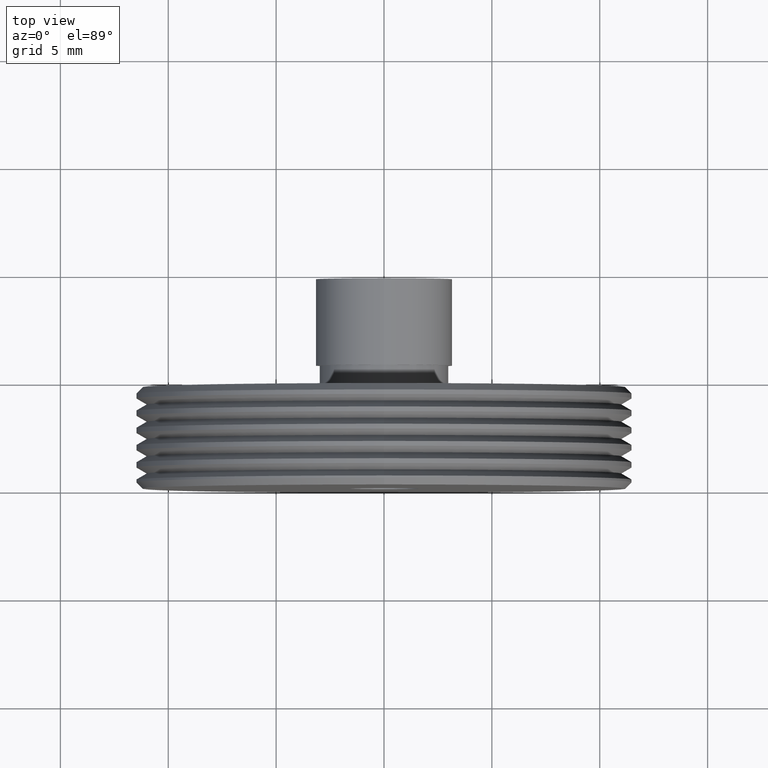
[diagram: clean part render]
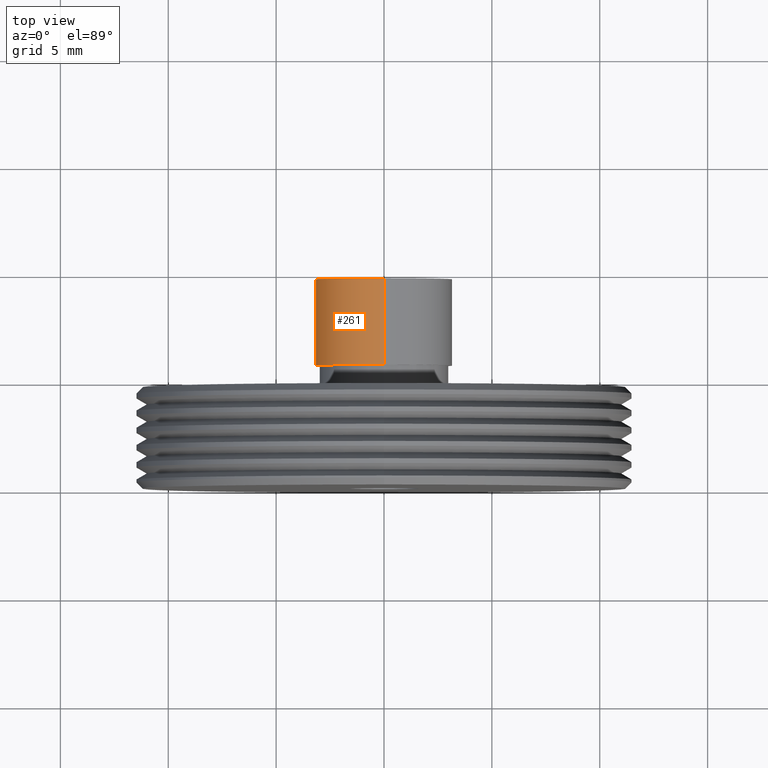
[diagram: same view with one face highlighted and labeled with its STEP entity id]
A machine part, top view. The second image highlights one B-rep face of the part: STEP entity #261.
In plain terms, the highlighted cylindrical surface (partial cylindrical patch) has radius 3.175 mm, axis along (-0, 1, -0).
Its self-contained STEP definition (entity closure, byte-faithful):
#20 = CARTESIAN_POINT ( 'NONE',  ( 0.0000000000000000000, 5.699999999999996600, 0.0000000000000000000 ) ) ;
#29 = CARTESIAN_POINT ( 'NONE',  ( 0.0000000000000000000, 41.06170623995065900, 3.175000000000004300 ) ) ;
#97 = DIRECTION ( 'NONE',  ( 0.0000000000000000000, 0.0000000000000000000, 1.000000000000000000 ) ) ;
#151 = LINE ( 'NONE', #29, #1055 ) ;
#249 = ORIENTED_EDGE ( 'NONE', *, *, #1036, .T. ) ;
#261 = ADVANCED_FACE ( 'NONE', ( #485 ), #560, .T. ) ;
#343 = CIRCLE ( 'NONE', #469, 3.175000000000004300 ) ;
#394 = DIRECTION ( 'NONE',  ( -0.0000000000000000000, 1.000000000000000000, -0.0000000000000000000 ) ) ;
#419 = DIRECTION ( 'NONE',  ( -0.0000000000000000000, 1.000000000000000000, -0.0000000000000000000 ) ) ;
#469 = AXIS2_PLACEMENT_3D ( 'NONE', #20, #684, #97 ) ;
#482 = EDGE_LOOP ( 'NONE', ( #1163, #909, #249, #593 ) ) ;
#485 = FACE_OUTER_BOUND ( 'NONE', #482, .T. ) ;
#500 = CARTESIAN_POINT ( 'NONE',  ( 3.888253587292851500E-016, 9.700000000000001100, -3.175000000000004300 ) ) ;
#534 = CARTESIAN_POINT ( 'NONE',  ( 3.888253587292851500E-016, 5.699999999999996600, -3.175000000000004300 ) ) ;
#560 = CYLINDRICAL_SURFACE ( 'NONE', #591, 3.175000000000004300 ) ;
#582 = DIRECTION ( 'NONE',  ( -0.0000000000000000000, 1.000000000000000000, -0.0000000000000000000 ) ) ;
#586 = CARTESIAN_POINT ( 'NONE',  ( 0.0000000000000000000, 5.699999999999996600, 3.175000000000004300 ) ) ;
#591 = AXIS2_PLACEMENT_3D ( 'NONE', #871, #582, #1242 ) ;
#593 = ORIENTED_EDGE ( 'NONE', *, *, #943, .F. ) ;
#595 = VERTEX_POINT ( 'NONE', #534 ) ;
#625 = VERTEX_POINT ( 'NONE', #813 ) ;
#684 = DIRECTION ( 'NONE',  ( -0.0000000000000000000, 1.000000000000000000, -0.0000000000000000000 ) ) ;
#691 = VECTOR ( 'NONE', #980, 1000.000000000000000 ) ;
#780 = CARTESIAN_POINT ( 'NONE',  ( 3.888253587292851500E-016, 41.06170623995065900, -3.175000000000004300 ) ) ;
#813 = CARTESIAN_POINT ( 'NONE',  ( 0.0000000000000000000, 9.700000000000001100, 3.175000000000004300 ) ) ;
#844 = VERTEX_POINT ( 'NONE', #586 ) ;
#871 = CARTESIAN_POINT ( 'NONE',  ( 0.0000000000000000000, 41.06170623995065900, 0.0000000000000000000 ) ) ;
#909 = ORIENTED_EDGE ( 'NONE', *, *, #968, .T. ) ;
#933 = VERTEX_POINT ( 'NONE', #500 ) ;
#943 = EDGE_CURVE ( 'NONE', #933, #625, #1160, .T. ) ;
#968 = EDGE_CURVE ( 'NONE', #595, #844, #343, .T. ) ;
#980 = DIRECTION ( 'NONE',  ( -0.0000000000000000000, 1.000000000000000000, -0.0000000000000000000 ) ) ;
#982 = DIRECTION ( 'NONE',  ( 0.0000000000000000000, 0.0000000000000000000, 1.000000000000000000 ) ) ;
#983 = EDGE_CURVE ( 'NONE', #595, #933, #1218, .T. ) ;
#1036 = EDGE_CURVE ( 'NONE', #844, #625, #151, .T. ) ;
#1055 = VECTOR ( 'NONE', #419, 1000.000000000000000 ) ;
#1160 = CIRCLE ( 'NONE', #1201, 3.175000000000004300 ) ;
#1163 = ORIENTED_EDGE ( 'NONE', *, *, #983, .F. ) ;
#1176 = CARTESIAN_POINT ( 'NONE',  ( 0.0000000000000000000, 9.700000000000001100, 0.0000000000000000000 ) ) ;
#1201 = AXIS2_PLACEMENT_3D ( 'NONE', #1176, #394, #982 ) ;
#1218 = LINE ( 'NONE', #780, #691 ) ;
#1242 = DIRECTION ( 'NONE',  ( 0.0000000000000000000, 0.0000000000000000000, 1.000000000000000000 ) ) ;